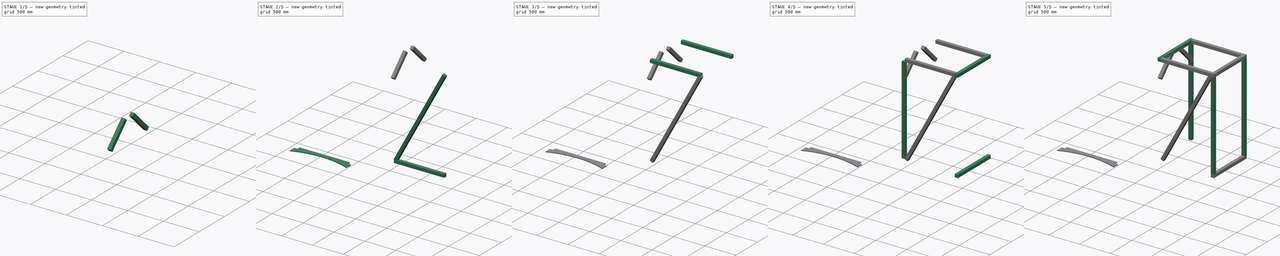
[diagram: build sequence overview — one tinted view per stage of 5, left to right]
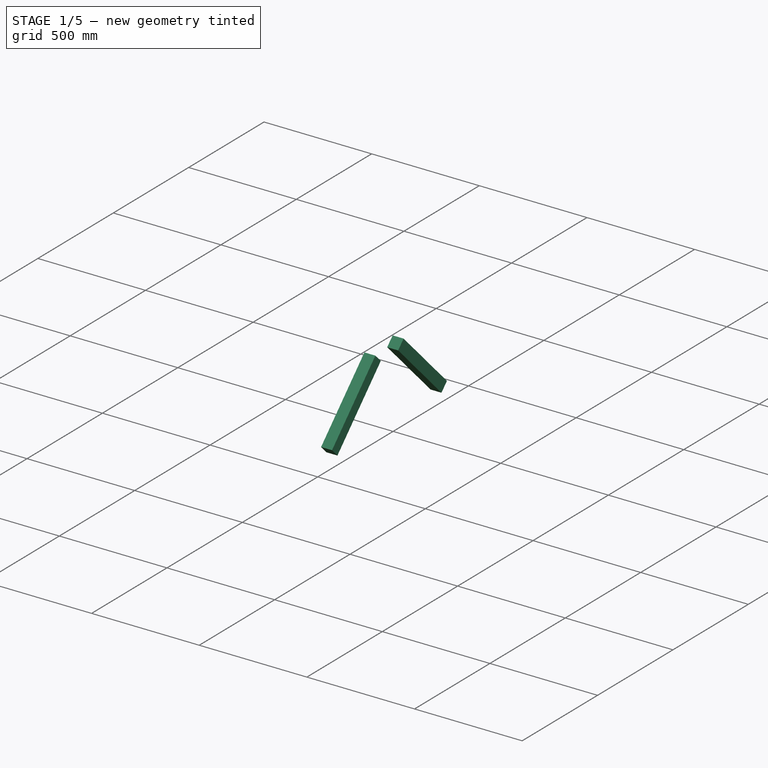
[diagram: stage 1 of 5 — iso view after this stage's code; geometry added in this stage tinted green]
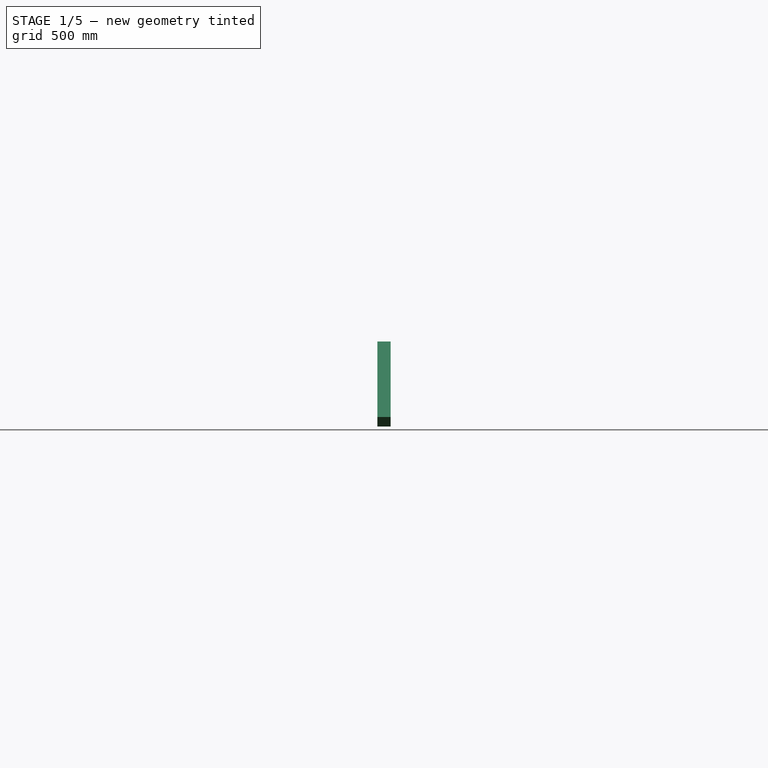
[diagram: stage 1 of 5 — front view after this stage's code; geometry added in this stage tinted green]
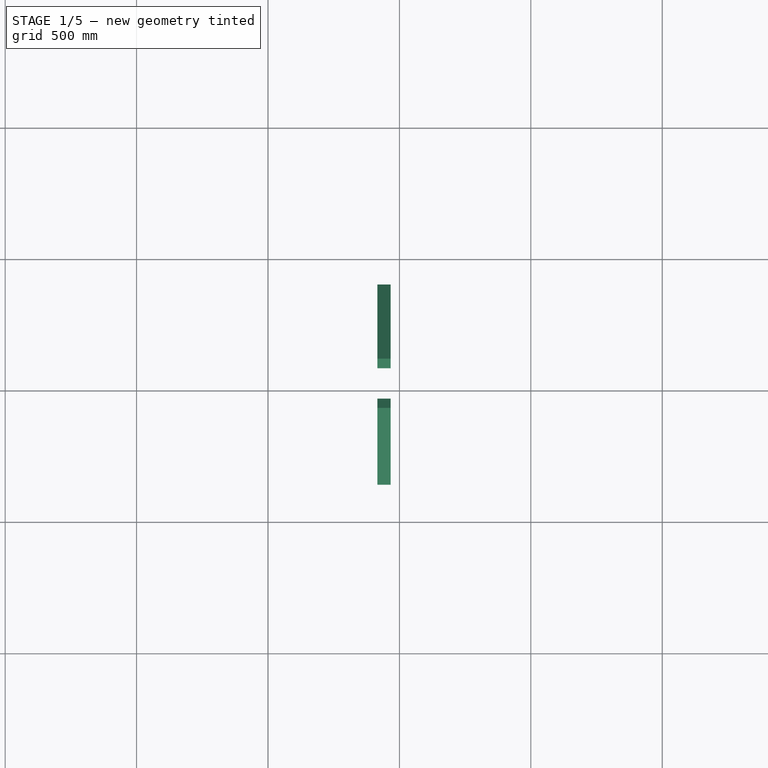
[diagram: stage 1 of 5 — top view after this stage's code; geometry added in this stage tinted green]
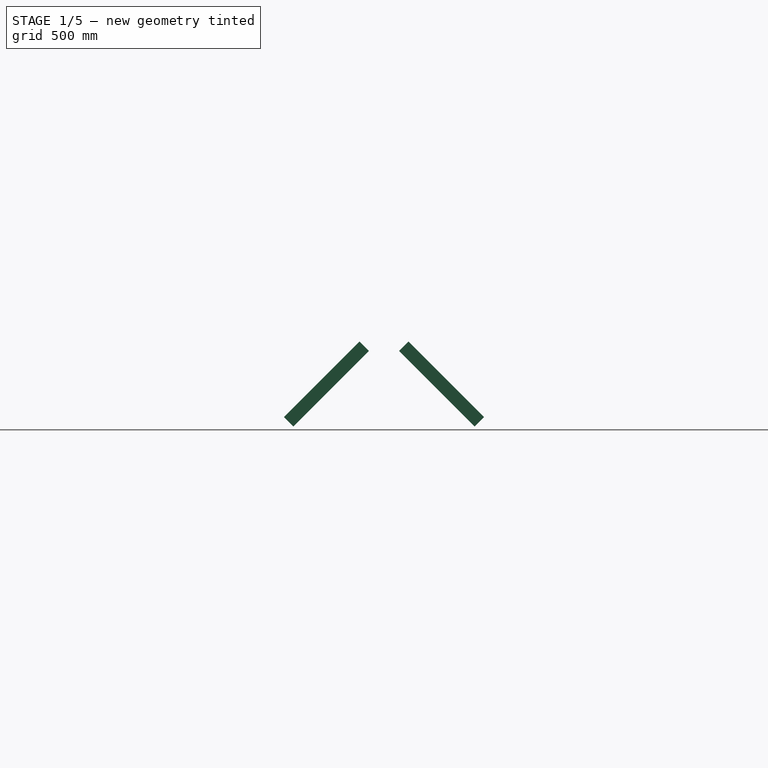
[diagram: stage 1 of 5 — right view after this stage's code; geometry added in this stage tinted green]
FCSTD DOCUMENT  (FreeCAD 0.16R6712 (Git))
Label: LT cab2x2 module
License: All rights reserved
LicenseURL: http://en.wikipedia.org/wiki/All_rights_reserved
objects: App::FeaturePython×37, Part::FeaturePython×13, Part::Box×5, App::MeasureDistance×4, Sketcher::SketchObject×1, PartDesign::Pad×1, App::DocumentObjectGroup×1
note: 21 computed .brp shape members not serialized (recipe doc carries the construction recipe); baked Part::Feature solids carry a one-line shape summary decoded from their .brp

FEATURE [App::FeaturePython] planeConstraint30  label="planeConstraint30___x2x56in_square_tube_01 rear right"  # a2plus constraint (typed FeaturePython)
  Object1 = Clone063027
  Object2 = _x2x56in_square_tube_01
  SubElement1 = Face3
  SubElement2 = Face3
  Type = plane
  directionConstraint = 0
  offset = 0
FEATURE [App::FeaturePython] planeConstraint30_mirror  label="cab2x2 clone of side angle brace to right"  # a2plus constraint (typed FeaturePython)
  Object1 = Clone063027
  Object2 = _x2x56in_square_tube_01
  SubElement1 = Face3
  SubElement2 = Face3
  Type = plane
  directionConstraint = 0
  offset = 0
FEATURE [App::DocumentObjectGroup] Group012  label="Cab2x2"
  Group = -> [_x2x56in_square_tube_01,planeConstraint07_mirror,Box018,planeConstraint09_mirror,planeConstraint10,planeConstraint10_mirror,planeConstraint11,planeConstraint11_mirror,Clone063020,Clone063019,Clone063017,planeConstraint12,planeConstraint12_mirror,Clone063018,planeConstraint13,Box019,planeConstraint14,planeConstraint15,planeConstraint16,planeConstraint16_mirror,Clone063021,Clone063022,+19 more]
FEATURE [App::MeasureDistance] Distance001  label="Distance: 36 in"
  Distance = 914.4
  P1 = (-84.0606,1642.61,781.923)
  P2 = (830.339,1642.61,781.923)
FEATURE [Part::Box] Box  label="45 brace 01"
  Height = 406.4
  Length = 50.8
  Placement = pos=(779.539,2368.69,458.634) rot=(1,0,0;0.785398rad)
  Width = 50.8
FEATURE [App::MeasureDistance] Distance002  label="Distance: 10.5008 in"
  Distance = 266.72
  P1 = (830.339,1903.78,731.123)
  P2 = (830.339,1693.41,567.156)
FEATURE [App::FeaturePython] planeConstraint02  # a2plus constraint (typed FeaturePython)
  Object1 = Clone063022
  Object2 = Box
  SubElement1 = Face6
  SubElement2 = Vertex7
  Type = plane
  directionConstraint = 0
  offset = 0
FEATURE [App::FeaturePython] planeConstraint03  # a2plus constraint (typed FeaturePython)
  Object1 = Clone063018
  Object2 = Box
  SubElement1 = Face4
  SubElement2 = Vertex8
  Type = plane
  directionConstraint = 0
  offset = 0
FEATURE [App::FeaturePython] planeConstraint04  # a2plus constraint (typed FeaturePython)
  Object1 = Box
  Object2 = Clone063018
  SubElement1 = Face2
  SubElement2 = Face2
  Type = plane
  directionConstraint = 0
  offset = 0
FEATURE [Part::Box] Box021  label="45 brace 002"
  Height = 406.4
  Length = 50.8
  Placement = pos=(779.539,1642.61,494.555) rot=(-1,0,0;0.785398rad)
  Width = 50.8
FEATURE [App::FeaturePython] planeConstraint05  label="45 to left top"  # a2plus constraint (typed FeaturePython)
  Object1 = Clone063022
  Object2 = Box021
  SubElement1 = Face6
  SubElement2 = Vertex5
  Type = plane
  directionConstraint = 0
  offset = 0
FEATURE [App::MeasureDistance] Distance003  label="Distance: 60 in"
  Distance = 1524
  P1 = (830.339,2404.61,781.923)
  P2 = (830.339,2404.61,-742.077)
FEATURE [App::FeaturePython] planeConstraint01  label="top left to side"  # a2plus constraint (typed FeaturePython)
  Object1 = Clone063025
  Object2 = Clone063022
  SubElement1 = Face4
  SubElement2 = Face4
  Type = plane
  directionConstraint = 0
  offset = 0
FEATURE [App::FeaturePython] planeConstraint06  label="top left to front"  # a2plus constraint (typed FeaturePython)
  Object1 = Clone063025
  Object2 = Clone063022
  SubElement1 = Face2
  SubElement2 = Face1
  Type = plane
  directionConstraint = 0
  offset = 0
FEATURE [App::FeaturePython] planeConstraint07  label="vert front right to side"  # a2plus constraint (typed FeaturePython)
  Object1 = Clone063020
  Object2 = Clone063022
  SubElement1 = Face3
  SubElement2 = Face3
  Type = plane
  directionConstraint = 0
  offset = 0
FEATURE [App::FeaturePython] planeConstraint08  label="45 corner to right side"  # a2plus constraint (typed FeaturePython)
  Object1 = Clone063020
  Object2 = Box021
  SubElement1 = Face3
  SubElement2 = Vertex6
  Type = plane
  directionConstraint = 0
  offset = 0
FEATURE [Part::FeaturePython] Clone  label="Clone of 45 brace 01"  # Draft clone (typed FeaturePython)
  Objects = -> [Box]
  Placement = pos=(-84.0606,2368.69,458.634) rot=(1,0,0;0.785398rad)
  Scale = (1,1,1)
FEATURE [Part::FeaturePython] Clone063028  label="Clone of 45 brace 002"  # Draft clone (typed FeaturePython)
  Objects = -> [Box021]
  Placement = pos=(-84.0606,1642.61,494.555) rot=(-1,0,0;0.785398rad)
  Scale = (1,1,1)
FEATURE [App::FeaturePython] planeConstraint09  label="planeConstraint09___x2x56in_square_tube_01 rear right"  # a2plus constraint (typed FeaturePython)
  Object1 = Clone063017
  Object2 = _x2x56in_square_tube_01
  SubElement1 = Face1
  SubElement2 = Face1
  Type = plane
  directionConstraint = 0
  offset = 0
FEATURE [App::FeaturePython] planeConstraint09_mirror001  label="planeConstraint09__Clone of cab2x2 top rear"  # a2plus constraint (typed FeaturePython)
  Object1 = Clone063017
  Object2 = _x2x56in_square_tube_01
  SubElement1 = Face1
  SubElement2 = Face1
  Type = plane
  directionConstraint = 0
  offset = 0
FEATURE [App::FeaturePython] planeConstraint26  label="45 right to top rear"  # a2plus constraint (typed FeaturePython)
  Object1 = Clone063017
  Object2 = Clone063028
  SubElement1 = Face1
  SubElement2 = Vertex1
  Type = plane
  directionConstraint = 0
  offset = 0
FEATURE [App::FeaturePython] planeConstraint27  label="45 left to top rear"  # a2plus constraint (typed FeaturePython)
  Object1 = Clone063017
  Object2 = Clone
  SubElement1 = Face1
  SubElement2 = Vertex3
  Type = plane
  directionConstraint = 0
  offset = 0
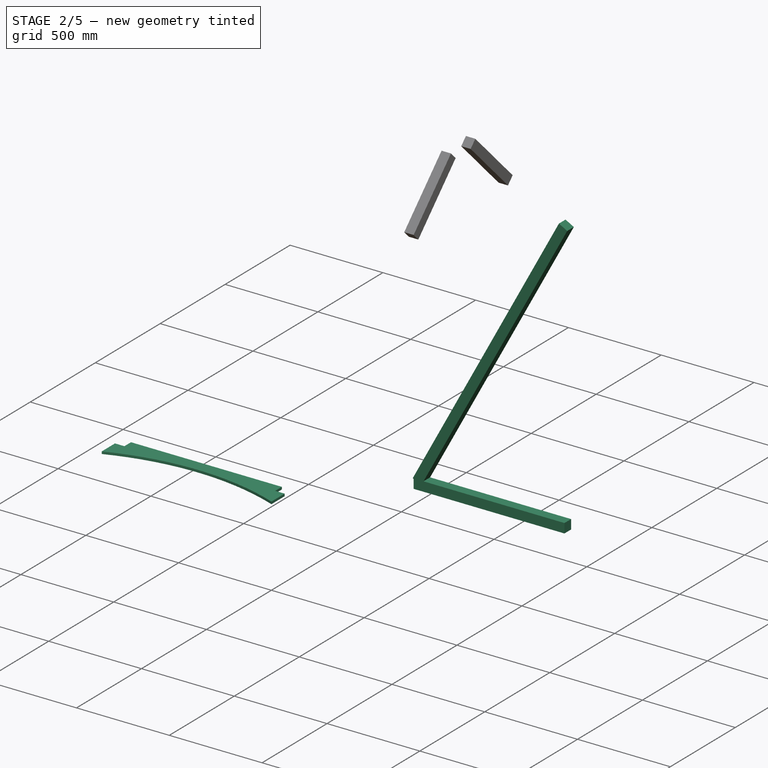
[diagram: stage 2 of 5 — iso view after this stage's code; geometry added in this stage tinted green]
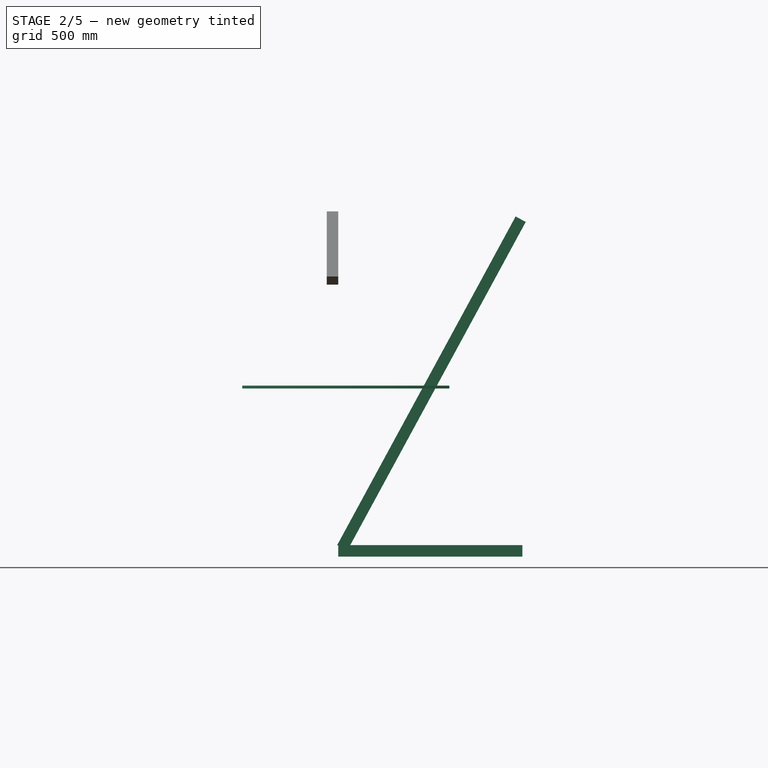
[diagram: stage 2 of 5 — front view after this stage's code; geometry added in this stage tinted green]
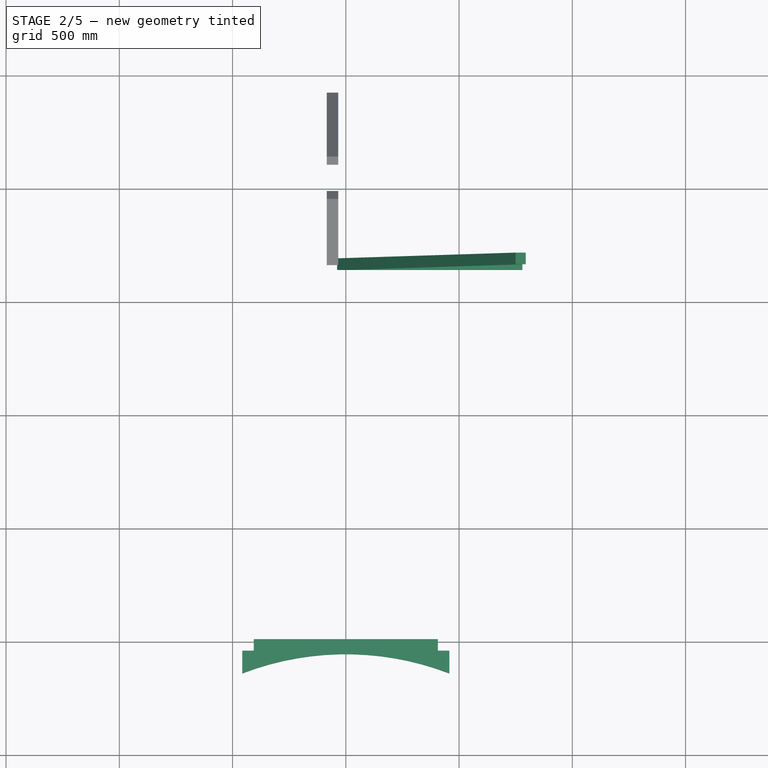
[diagram: stage 2 of 5 — top view after this stage's code; geometry added in this stage tinted green]
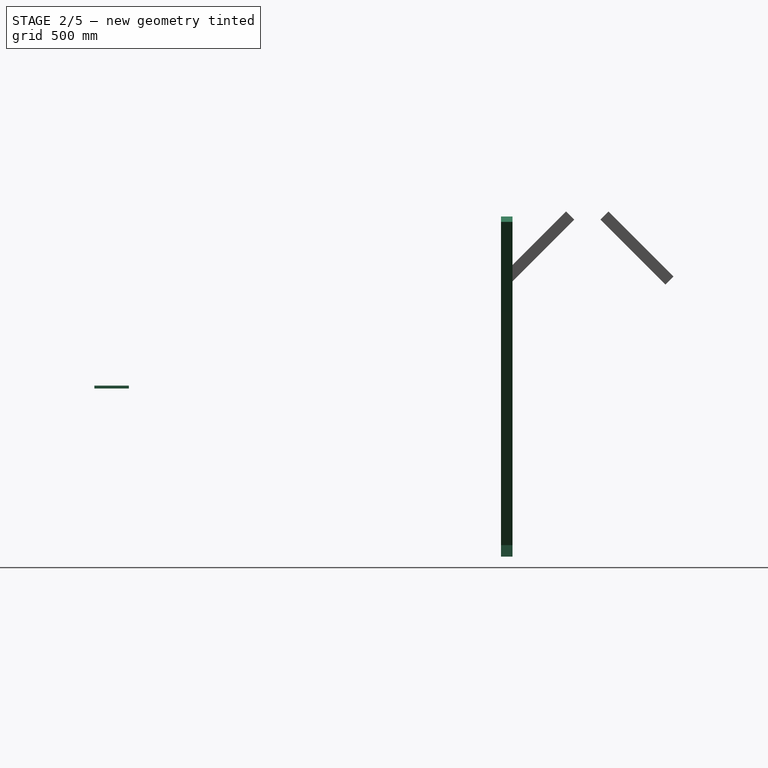
[diagram: stage 2 of 5 — right view after this stage's code; geometry added in this stage tinted green]
FEATURE [App::FeaturePython] planeConstraint13  label="left side rear  vert"  # a2plus constraint (typed FeaturePython)
  Object1 = Clone063018
  Object2 = Box018
  SubElement1 = Face4
  SubElement2 = Face4
  Type = plane
  directionConstraint = 0
  offset = 0
FEATURE [Part::Box] Box019  label="cab2x2side01"
  Height = 50.8
  Length = 812.8
  Placement = pos=(-33.2606,1642.61,-742.077) rot=(0,0,1;0rad)
  Width = 50.8
FEATURE [App::FeaturePython] planeConstraint25  label="left side to top"  # a2plus constraint (typed FeaturePython)
  Object1 = Clone063025
  Object2 = Clone063022
  SubElement1 = Face6
  SubElement2 = Face6
  Type = plane
  directionConstraint = 0
  offset = 0
FEATURE [App::MeasureDistance] Distance  label="Distance: 30 in"
  Distance = 762
  P1 = (830.339,2404.61,781.923)
  P2 = (830.339,1642.61,781.923)
FEATURE [Sketcher::SketchObject] Sketch021  label="reinforcement plate shape 01"
  sketch-geometry (9):
    g0: LineSegment StartX=0 StartY=0 StartZ=0 EndX=406.4 EndY=0 EndZ=0
    g1: LineSegment StartX=0 StartY=0 StartZ=0 EndX=-406.4 EndY=0 EndZ=0
    g2: LineSegment StartX=-457.2 StartY=-50.8 StartZ=0 EndX=-457.2 EndY=-152.4 EndZ=0
    g3: LineSegment StartX=457.2 StartY=-50.8 StartZ=0 EndX=457.2 EndY=-152.4 EndZ=0
    g4: ArcOfCircle CenterX=0 CenterY=-1337.25 CenterZ=0 NormalX=0 NormalY=0 NormalZ=1 Radius=1270 StartAngle=1.20253 EndAngle=1.93906
    g5: LineSegment StartX=-457.2 StartY=-50.8 StartZ=0 EndX=-406.4 EndY=-50.8 EndZ=0
    g6: LineSegment StartX=-406.4 StartY=-50.8 StartZ=0 EndX=-406.4 EndY=0 EndZ=0
    g7: LineSegment StartX=406.4 StartY=0 StartZ=0 EndX=406.4 EndY=-50.8 EndZ=0
    g8: LineSegment StartX=406.4 StartY=-50.8 StartZ=0 EndX=457.2 EndY=-50.8 EndZ=0
  constraints (31):
    c: Coincident(g0,g-1)
    c: Horizontal(g0)
    c: Coincident(g1,g-1)
    c: Horizontal(g1)
    c: Equal(g0,g1)  'Constraint5'
    c: Vertical(g2)
    c: Vertical(g3)
    c: Equal(g2,g3)
    c: Coincident(g4,g2)
    c: Coincident(g4,g3)
    c: Radius(g4) = 1270
    c: Horizontal(g5)
    c: Coincident(g6,g5)
    c: PointOnObject(g6,g1)
    c: Vertical(g6)
    c: DistanceY(g6,g6) = 50.8
    c: Equal(g5,g6)
    c: Coincident(g2,g5)
    c: Coincident(g1,g6)
    c: Equal(g0,g1)
    c: DistanceY(g2,g2) = 101.6
    c: Vertical(g7)
    c: Coincident(g8,g7)
    c: PointOnObject(g8,g3)
    c: Horizontal(g8)
    c: Coincident(g0,g7)
    c: Coincident(g3,g8)
    c: Equal(g7,g8)
    c: Equal(g8,g5)
    c: Equal(g3,g2)
    c: DistanceX(g0,g0) = 406.4
FEATURE [PartDesign::Pad] Pad008003005  label="Reinforcement Plate Front 01"
  Length = 12.7
  Length2 = 100
  Sketch = -> Sketch021
  Type = 0
FEATURE [Part::Box] Box020  label="cab2x2 side angle brace left"
  Height = 1651
  Length = 50.8
  Placement = pos=(-38.1,2353.81,-691.276) rot=(0,1,0;0.497419rad)
  Width = 50.8
FEATURE [App::FeaturePython] planeConstraint29  label="cab2x2 side angle brace to left"  # a2plus constraint (typed FeaturePython)
  Object1 = Box020
  Object2 = Clone063019
  SubElement1 = Face4
  SubElement2 = Face4
  Type = plane
  directionConstraint = 0
  offset = 0
FEATURE [Part::FeaturePython] Clone063027  label="Clone of cab2x2 side angle brace left"  # Draft clone (typed FeaturePython)
  Objects = -> [Box020]
  Placement = pos=(-38.1,1642.61,-691.276) rot=(0,1,0;0.497419rad)
  Scale = (1,1,1)
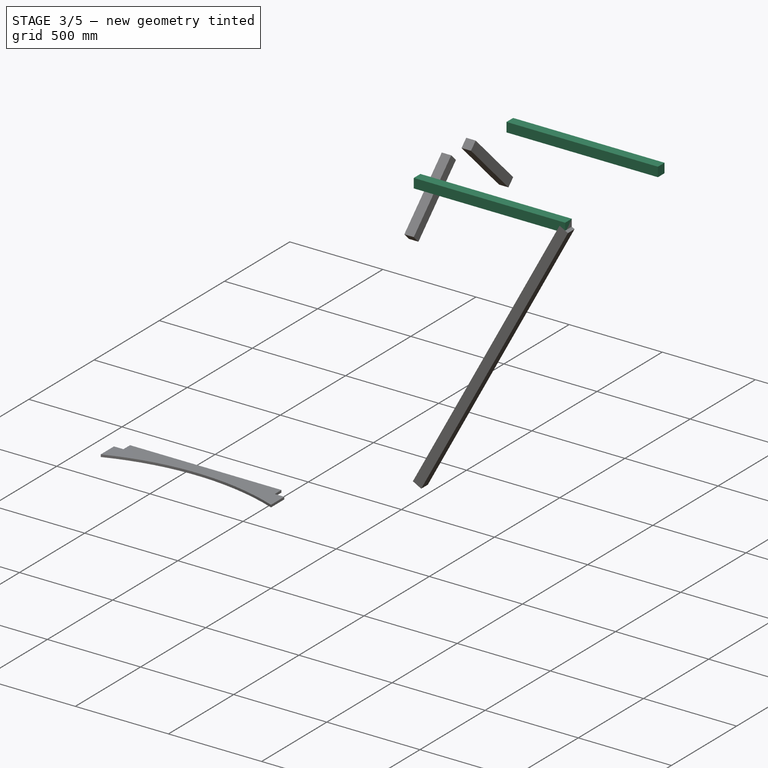
[diagram: stage 3 of 5 — iso view after this stage's code; geometry added in this stage tinted green]
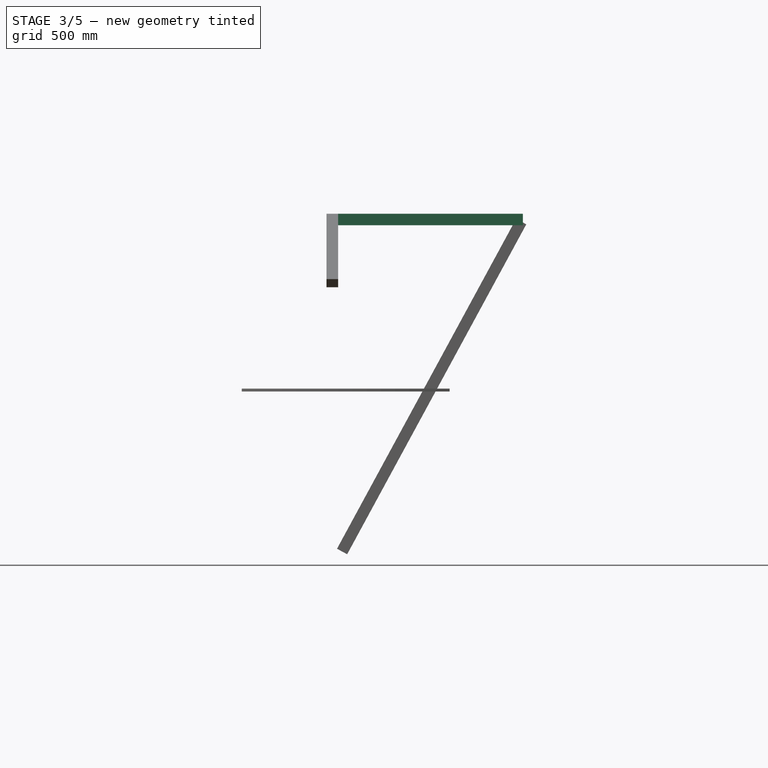
[diagram: stage 3 of 5 — front view after this stage's code; geometry added in this stage tinted green]
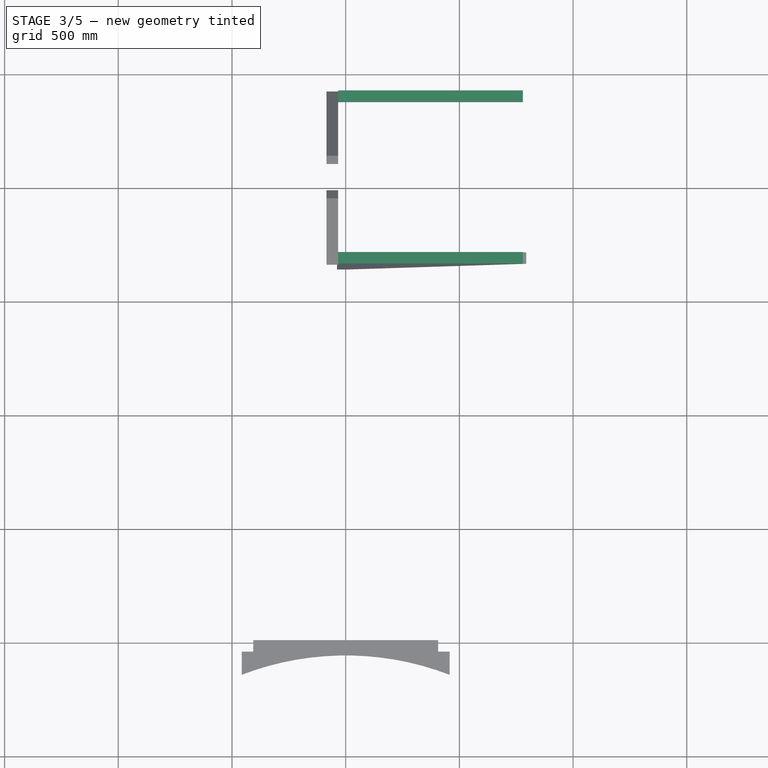
[diagram: stage 3 of 5 — top view after this stage's code; geometry added in this stage tinted green]
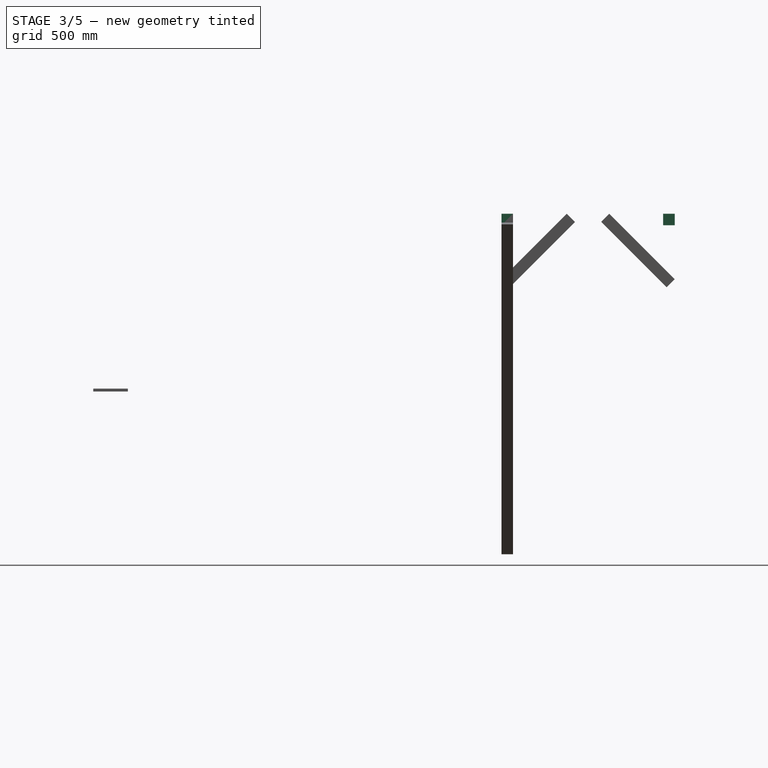
[diagram: stage 3 of 5 — right view after this stage's code; geometry added in this stage tinted green]
FEATURE [App::FeaturePython] planeConstraint17  label="cab2x2 bottom front to right side"  # a2plus constraint (typed FeaturePython)
  Object1 = Clone063021
  Object2 = Box019
  SubElement1 = Face1
  SubElement2 = Face2
  Type = plane
  directionConstraint = 0
  offset = 0
FEATURE [App::FeaturePython] planeConstraint18  label="cab2x2 front vert"  # a2plus constraint (typed FeaturePython)
  Object1 = Clone063020
  Object2 = Clone063021
  SubElement1 = Face2
  SubElement2 = Face2
  Type = plane
  directionConstraint = 0
  offset = 0
FEATURE [App::FeaturePython] planeConstraint19  label="cab2x2 vert left rear to left side"  # a2plus constraint (typed FeaturePython)
  Object1 = Clone063019
  Object2 = Clone063018
  SubElement1 = Face4
  SubElement2 = Face4
  Type = plane
  directionConstraint = 0
  offset = 0
FEATURE [App::FeaturePython] planeConstraint20  label="vert left to front"  # a2plus constraint (typed FeaturePython)
  Object1 = Clone063018
  Object2 = Clone063021
  SubElement1 = Face2
  SubElement2 = Face2
  Type = plane
  directionConstraint = 0
  offset = 0
FEATURE [Part::FeaturePython] Clone063023  label="Clone of cab2x2side01"  # Draft clone (typed FeaturePython)
  Objects = -> [Box019]
  Placement = pos=(-33.2606,2353.81,-742.077) rot=(0,0,1;0rad)
  Scale = (1,1,1)
FEATURE [App::FeaturePython] planeConstraint21  # a2plus constraint (typed FeaturePython)
  Object1 = Clone063023
  Object2 = Clone063021
  SubElement1 = Face4
  SubElement2 = Face4
  Type = plane
  directionConstraint = 0
  offset = 0
FEATURE [App::FeaturePython] planeConstraint22  label="top to front vert"  # a2plus constraint (typed FeaturePython)
  Object1 = Clone063022
  Object2 = Clone063018
  SubElement1 = Face5
  SubElement2 = Face6
  Type = plane
  directionConstraint = 0
  offset = 0
FEATURE [App::FeaturePython] planeConstraint23  label="top to front vert001"  # a2plus constraint (typed FeaturePython)
  Object1 = Clone063022
  Object2 = Clone063018
  SubElement1 = Face2
  SubElement2 = Face2
  Type = plane
  directionConstraint = 0
  offset = 0
FEATURE [Part::FeaturePython] Clone063024  label="Clone of cab2x2side002"  # Draft clone (typed FeaturePython)
  Objects = -> [Box019]
  Placement = pos=(-33.2606,1642.61,731.123) rot=(0,0,1;0rad)
  Scale = (1,1,1)
FEATURE [App::FeaturePython] planeConstraint24  label="rigth side to top"  # a2plus constraint (typed FeaturePython)
  Object1 = Clone063024
  Object2 = Clone063022
  SubElement1 = Face6
  SubElement2 = Face6
  Type = plane
  directionConstraint = 0
  offset = 0
FEATURE [Part::FeaturePython] Clone063025  label="Clone of Clone of cab2x2side01"  # Draft clone (typed FeaturePython)
  Objects = -> [Clone063023]
  Placement = pos=(-33.2606,2353.81,731.123) rot=(0,0,1;0rad)
  Scale = (1,1,1)
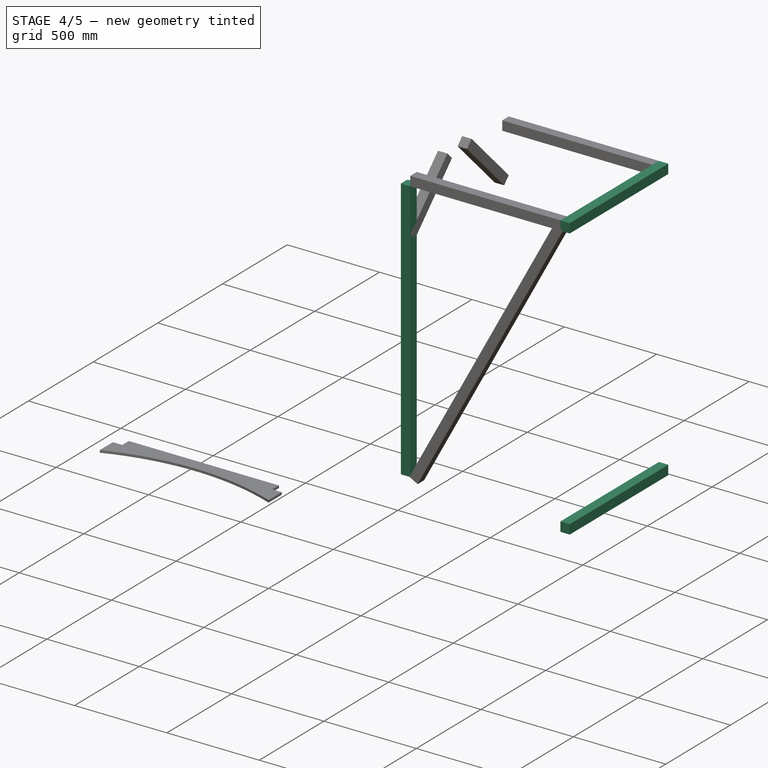
[diagram: stage 4 of 5 — iso view after this stage's code; geometry added in this stage tinted green]
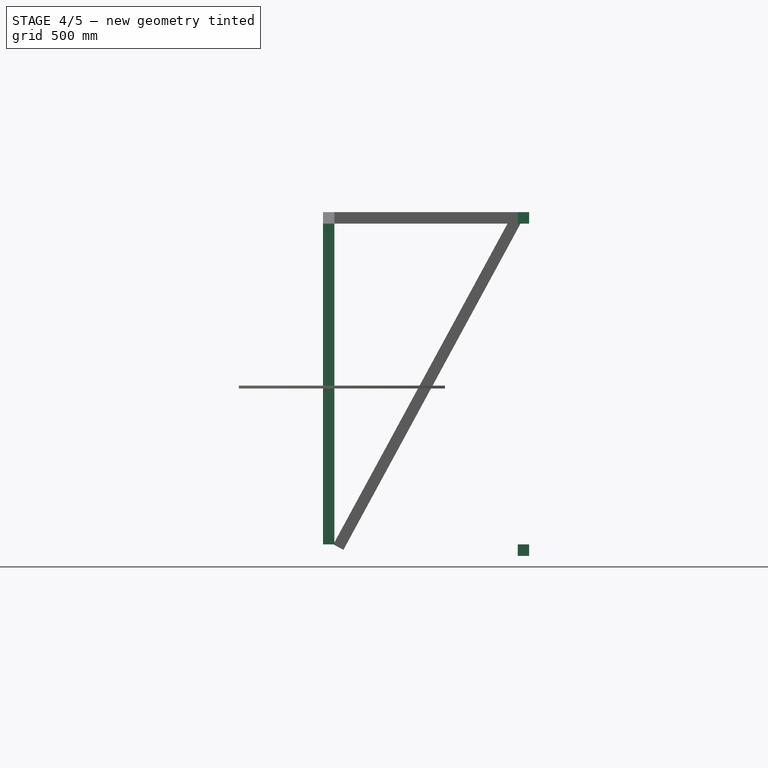
[diagram: stage 4 of 5 — front view after this stage's code; geometry added in this stage tinted green]
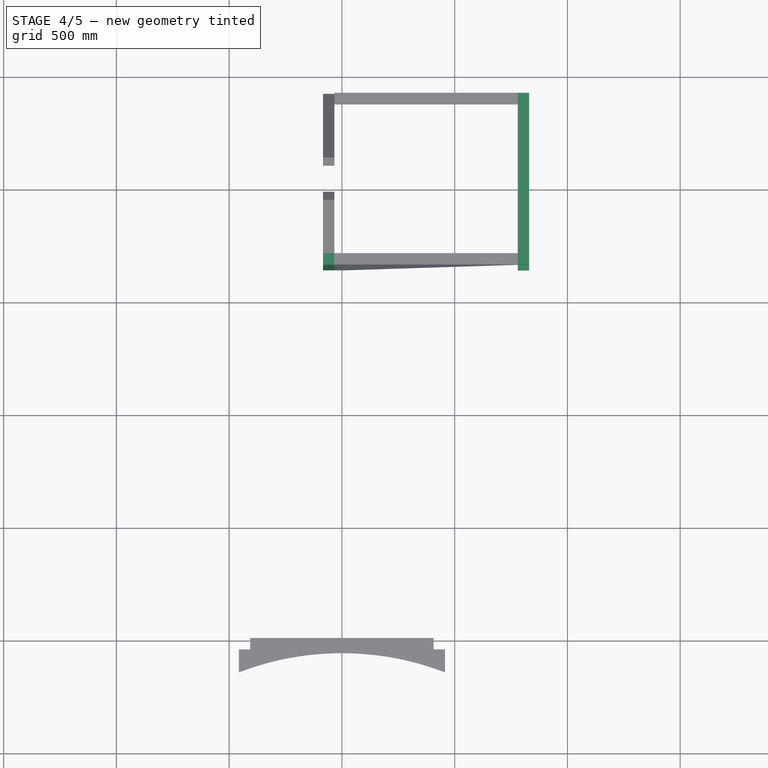
[diagram: stage 4 of 5 — top view after this stage's code; geometry added in this stage tinted green]
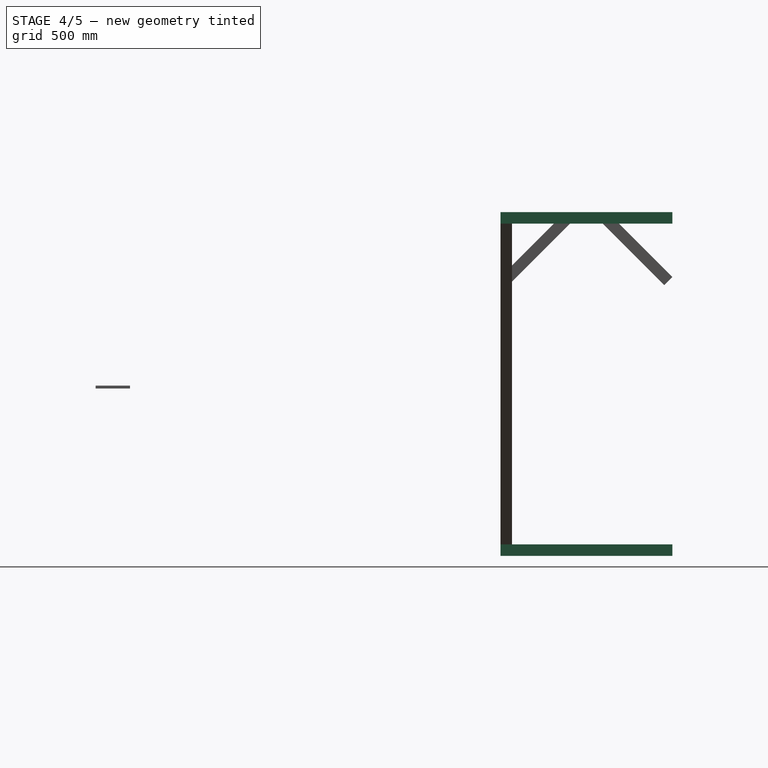
[diagram: stage 4 of 5 — right view after this stage's code; geometry added in this stage tinted green]
FEATURE [Part::FeaturePython] _x2x56in_square_tube_01  label="_x2x56in_square_tube_01 rear right"  # a2plus imported part (geometry in sourceFile) (typed FeaturePython)
  Placement = pos=(-84.0606,1642.61,-691.277) rot=(0,0,1;0rad)
  fixedPosition = true
  sourceFile = <userpath>/Documents/Tractor 17.10/LT/2x2x56in square tube.fcstd
  timeLastImport = 1.51001e+09
  updateColors = true
FEATURE [App::FeaturePython] planeConstraint07_mirror  label="cab2x2vert01"  # a2plus constraint (typed FeaturePython)
  Object1 = _x2x56in_square_tube_01
  Object2 = Clone063016
  SubElement1 = Face3
  SubElement2 = Face15
  Type = plane
  directionConstraint = 1
  offset = 12.7
FEATURE [Part::Box] Box018  label="cab2x2bottom rear01"
  Height = 50.8
  Length = 50.8
  Placement = pos=(-84.0606,1642.61,-742.077) rot=(0,0,1;0rad)
  Width = 762
FEATURE [App::FeaturePython] planeConstraint14  label="cab2x2 bottom right side01 to vert01"  # a2plus constraint (typed FeaturePython)
  Object1 = Box019
  Object2 = Clone063019
  SubElement1 = Face1
  SubElement2 = Face2
  Type = plane
  directionConstraint = 0
  offset = 0
FEATURE [App::FeaturePython] planeConstraint15  # a2plus constraint (typed FeaturePython)
  Object1 = Box019
  Object2 = Clone063019
  SubElement1 = Face6
  SubElement2 = Face5
  Type = plane
  directionConstraint = 0
  offset = 0
FEATURE [App::FeaturePython] planeConstraint16  label="planeConstraint16___x2x56in_square_tube_01 rear right"  # a2plus constraint (typed FeaturePython)
  Object1 = Box019
  Object2 = _x2x56in_square_tube_01
  SubElement1 = Face4
  SubElement2 = Face4
  Type = plane
  directionConstraint = 0
  offset = 0
FEATURE [App::FeaturePython] planeConstraint16_mirror  label="planeConstraint16__cab2x2side01"  # a2plus constraint (typed FeaturePython)
  Object1 = Box019
  Object2 = _x2x56in_square_tube_01
  SubElement1 = Face4
  SubElement2 = Face4
  Type = plane
  directionConstraint = 0
  offset = 0
FEATURE [Part::FeaturePython] Clone063021  label="Clone of cab2x2 bottom front"  # Draft clone (typed FeaturePython)
  Objects = -> [Box018]
  Placement = pos=(779.539,1642.61,-742.077) rot=(0,0,1;0rad)
  Scale = (1,1,1)
FEATURE [Part::FeaturePython] Clone063022  label="Clone of cab2x2 top front"  # Draft clone (typed FeaturePython)
  Objects = -> [Box018]
  Placement = pos=(779.539,1642.61,731.123) rot=(0,0,1;0rad)
  Scale = (1,1,1)
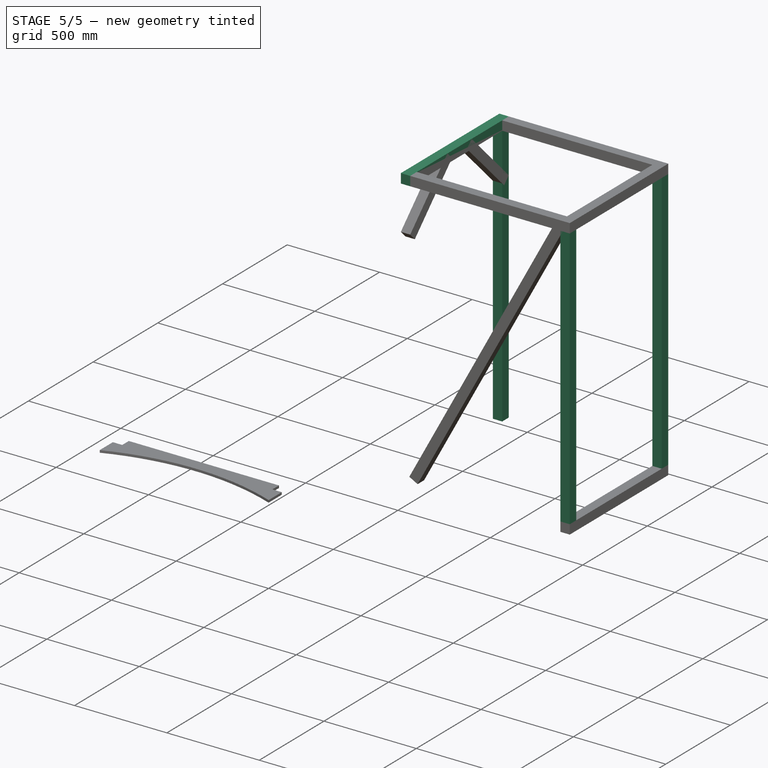
[diagram: stage 5 of 5 — iso view after this stage's code; geometry added in this stage tinted green]
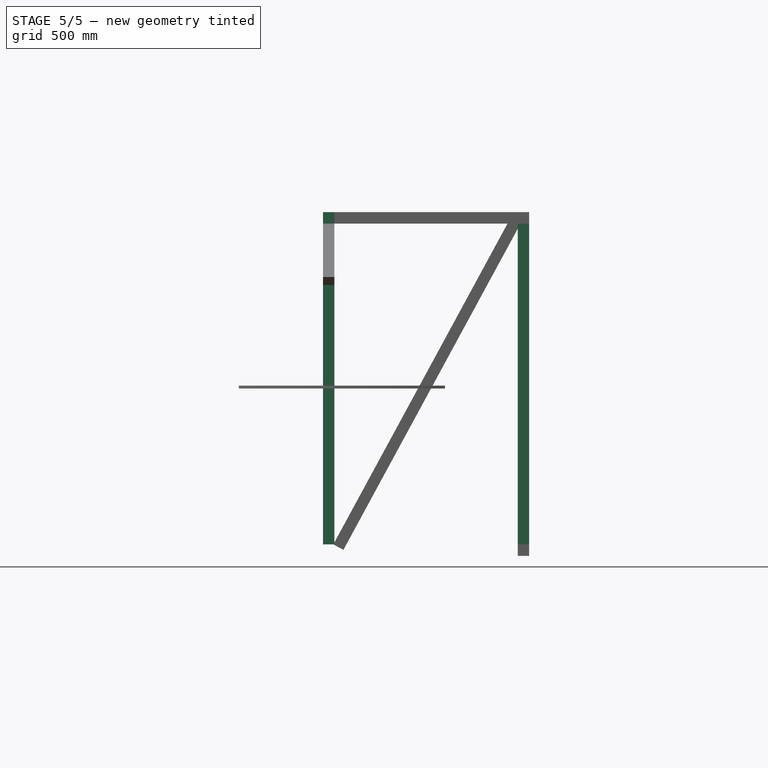
[diagram: stage 5 of 5 — front view after this stage's code; geometry added in this stage tinted green]
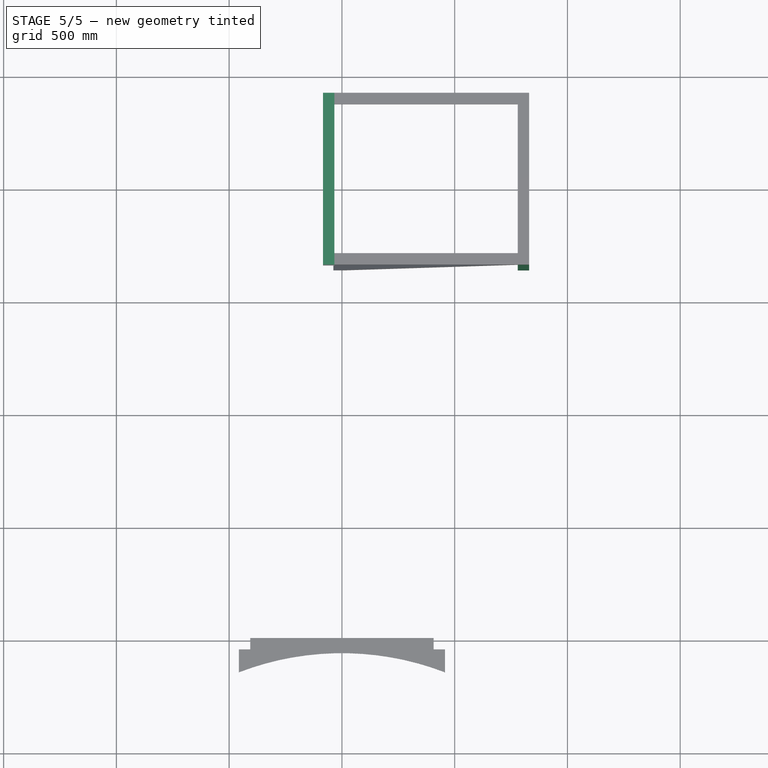
[diagram: stage 5 of 5 — top view after this stage's code; geometry added in this stage tinted green]
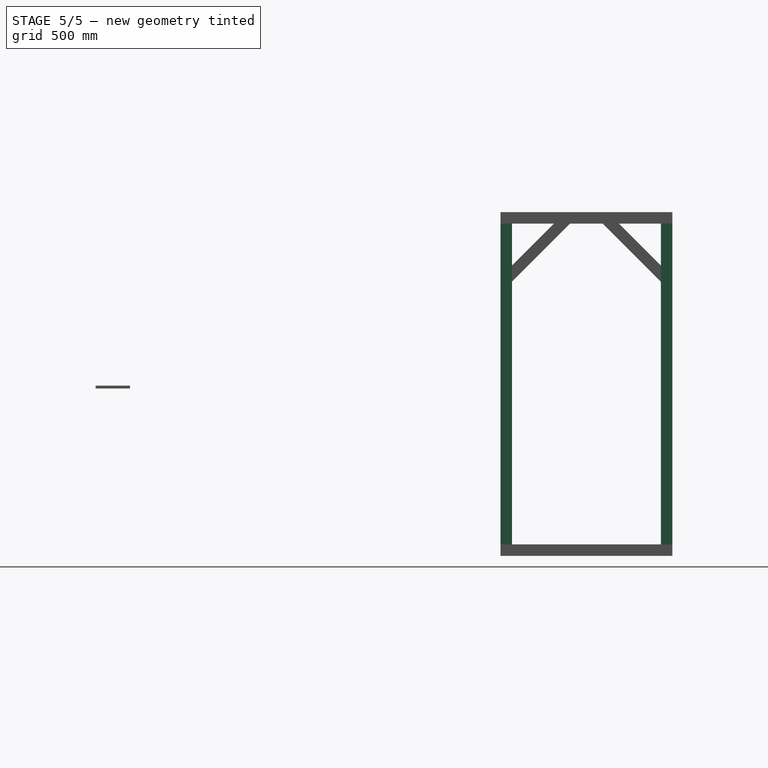
[diagram: stage 5 of 5 — right view after this stage's code; geometry added in this stage tinted green]
FEATURE [App::FeaturePython] planeConstraint09_mirror  label="planeConstraint09___x2x56in_square_tube_01"  # a2plus constraint (typed FeaturePython)
  Object1 = _x2x56in_square_tube_01
  Object2 = Clone021
  SubElement1 = Face5
  SubElement2 = Face1
  Type = plane
  directionConstraint = 1
  offset = 50.8
FEATURE [App::FeaturePython] planeConstraint10  label="planeConstraint10___x2x56in_square_tube_01"  # a2plus constraint (typed FeaturePython)
  Object1 = Box018
  Object2 = _x2x56in_square_tube_01
  SubElement1 = Face3
  SubElement2 = Face3
  Type = plane
  directionConstraint = 0
  offset = 0
FEATURE [App::FeaturePython] planeConstraint10_mirror  label="planeConstraint10__Cube001"  # a2plus constraint (typed FeaturePython)
  Object1 = Box018
  Object2 = _x2x56in_square_tube_01
  SubElement1 = Face3
  SubElement2 = Face3
  Type = plane
  directionConstraint = 0
  offset = 0
FEATURE [App::FeaturePython] planeConstraint11  label="planeConstraint11___x2x56in_square_tube_01"  # a2plus constraint (typed FeaturePython)
  Object1 = Box018
  Object2 = _x2x56in_square_tube_01
  SubElement1 = Face1
  SubElement2 = Face1
  Type = plane
  directionConstraint = 0
  offset = 0
FEATURE [App::FeaturePython] planeConstraint11_mirror  label="planeConstraint11__Cube001"  # a2plus constraint (typed FeaturePython)
  Object1 = Box018
  Object2 = _x2x56in_square_tube_01
  SubElement1 = Face1
  SubElement2 = Face1
  Type = plane
  directionConstraint = 0
  offset = 0
FEATURE [Part::FeaturePython] Clone063017  label="Clone of cab2x2 top rear"  # Draft clone (typed FeaturePython)
  Objects = -> [Box018]
  Placement = pos=(-84.0606,1642.61,731.123) rot=(0,0,1;0rad)
  Scale = (1,1,1)
FEATURE [App::FeaturePython] planeConstraint12  label="planeConstraint12___x2x56in_square_tube_01"  # a2plus constraint (typed FeaturePython)
  Object1 = Clone063017
  Object2 = _x2x56in_square_tube_01
  SubElement1 = Face5
  SubElement2 = Face6
  Type = plane
  directionConstraint = 0
  offset = 0
FEATURE [App::FeaturePython] planeConstraint12_mirror  label="planeConstraint12__Clone of cab2x2bottom rear"  # a2plus constraint (typed FeaturePython)
  Object1 = Clone063017
  Object2 = _x2x56in_square_tube_01
  SubElement1 = Face5
  SubElement2 = Face6
  Type = plane
  directionConstraint = 0
  offset = 0
FEATURE [Part::FeaturePython] Clone063018  label="vert left front"  # Draft clone (typed FeaturePython)
  Objects = -> [_x2x56in_square_tube_01]
  Placement = pos=(779.539,2353.81,-691.277) rot=(0,0,1;0rad)
  Scale = (1,1,1)
FEATURE [Part::FeaturePython] Clone063019  label="cab2x2 vert left rear"  # Draft clone (typed FeaturePython)
  Objects = -> [_x2x56in_square_tube_01]
  Placement = pos=(-84.0606,2353.81,-691.277) rot=(0,0,1;0rad)
  Scale = (1,1,1)
FEATURE [Part::FeaturePython] Clone063020  label="Clone of _x2x56in_square_tube_003"  # Draft clone (typed FeaturePython)
  Objects = -> [_x2x56in_square_tube_01]
  Placement = pos=(779.539,1642.61,-691.277) rot=(0,0,1;0rad)
  Scale = (1,1,1)
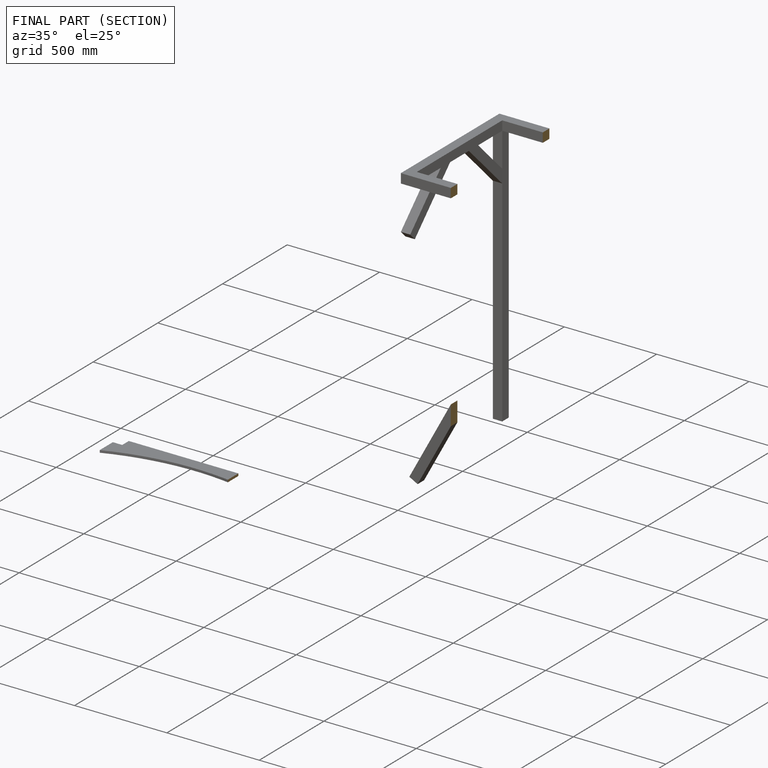
[diagram: finished part — half-section view (interior)]
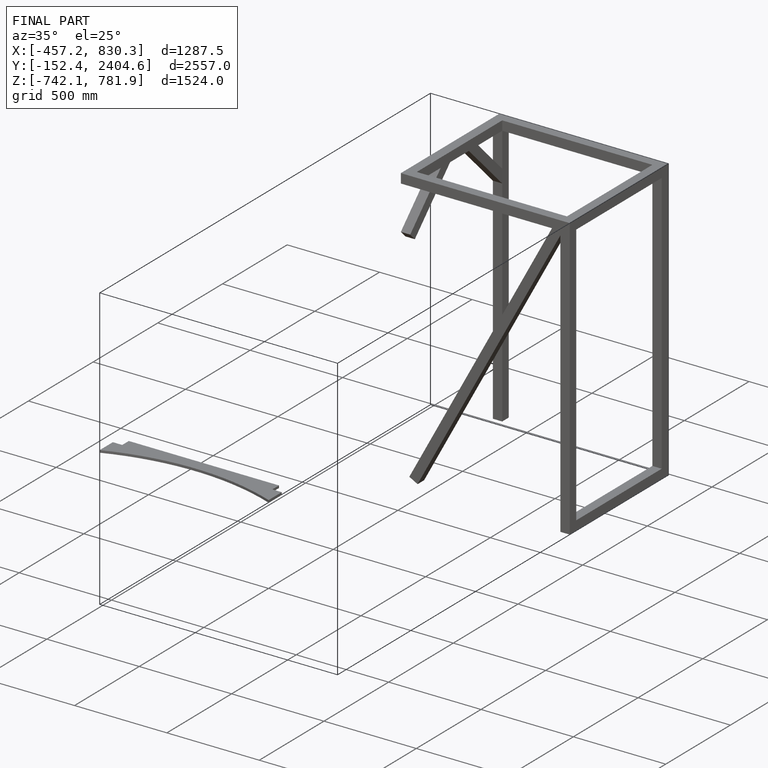
[diagram: finished part — iso view with bounding-box wireframe]
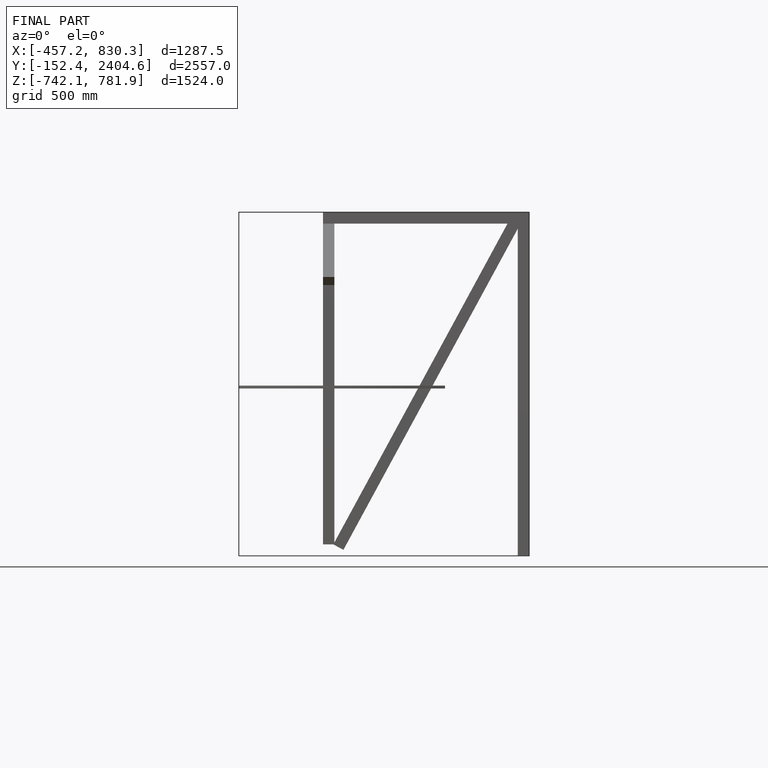
[diagram: finished part — front view with bounding-box wireframe]
